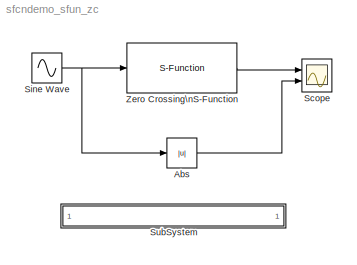
MODEL sfcndemo_sfun_zc
KIND model
BLOCK [Abs] Abs
BLOCK [Scope] Scope
  DataFormat = StructureWithTime
  NumInputPorts = 2
  Ports = [2]
  TimeRange = 10
  YMax = 2~2
  YMin = 0~0
BLOCK [Sin] Sine Wave
  Amplitude = 1:2
  Ports = [0, 1]
  SampleTime = 0
BLOCK [SubSystem] SubSystem
  MaskDisplay = disp('matlabroot<path>');
  MaskIconFrame = on
  MaskIconOpaque = on
  MaskIconRotate = none
  MaskIconUnits = autoscale
  MinAlgLoopOccurrences = off
  OpenFcn = edit(fullfile(matlabroot,'simulink','src','sfun_zc.c'))
  Ports = []
  PropExecContextAcrossSSBoundary = on
  RTWSystemCode = Auto
  TreatAsAtomicUnit = off
BLOCK [S-Function] Zero Crossing\nS-Function
  FunctionName = sfun_zc
  MaskDescription = This is a S-function block which has nonsampled zero crossings.
  MaskIconFrame = on
  MaskIconOpaque = on
  MaskIconRotate = none
  MaskIconUnits = autoscale
  MaskType = S-function: sfun_zc
  Ports = [1, 1]
LINE Abs:1 -> Scope:2
NET Sine Wave:1 -> Abs:1, Zero Crossing\nS-Function:1
LINE Zero Crossing\nS-Function:1 -> Scope:1
note: NET lines group one-source signal fan-out (src -> all destinations, sorted); 1:1 wires keep LINE
note: 1 file-system path scrubbed to <path> (not preserved elsewhere — flat text is the only slx artifact)
